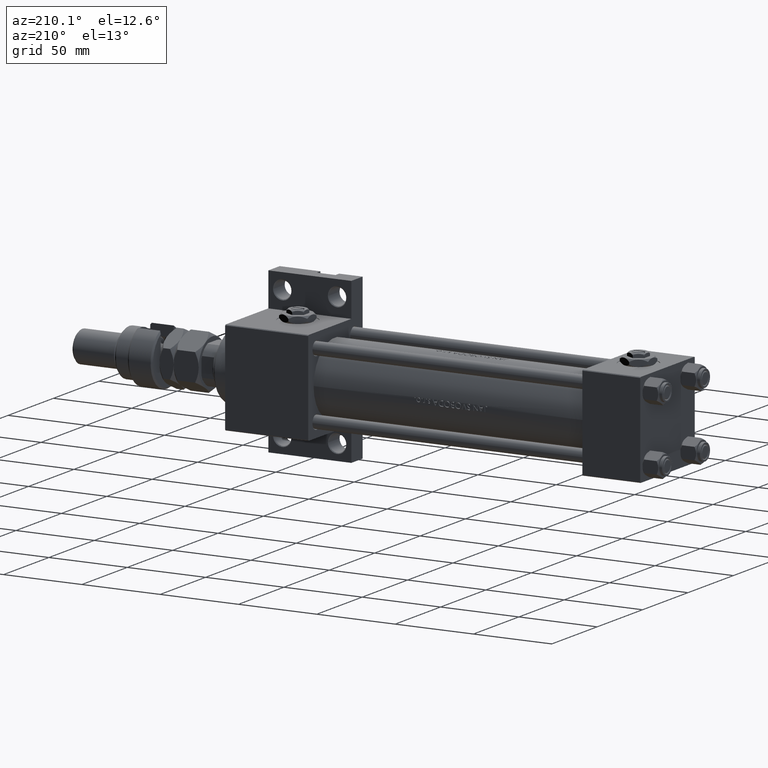
[diagram: clean part render]
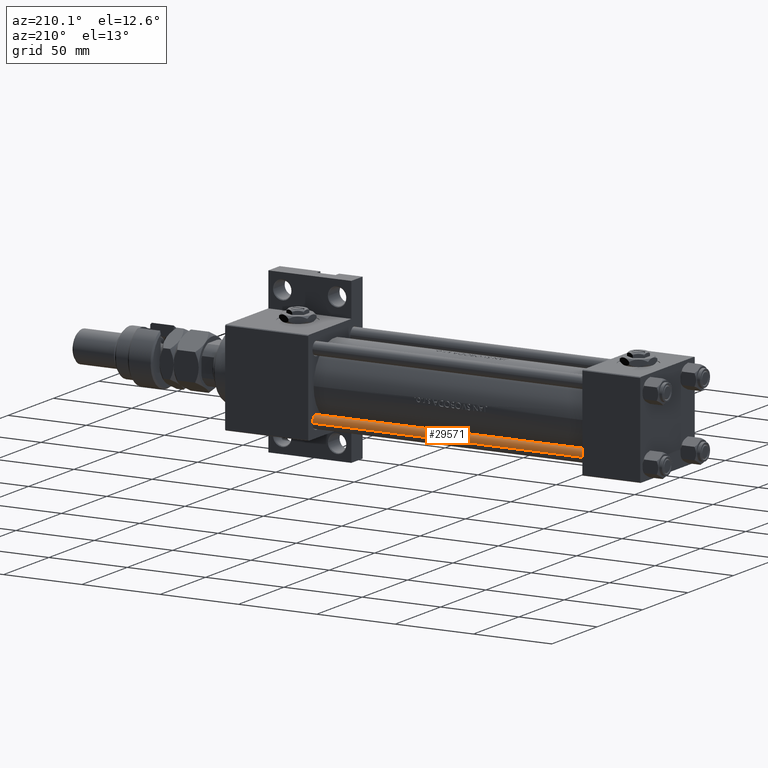
[diagram: same view with one face highlighted and labeled with its STEP entity id]
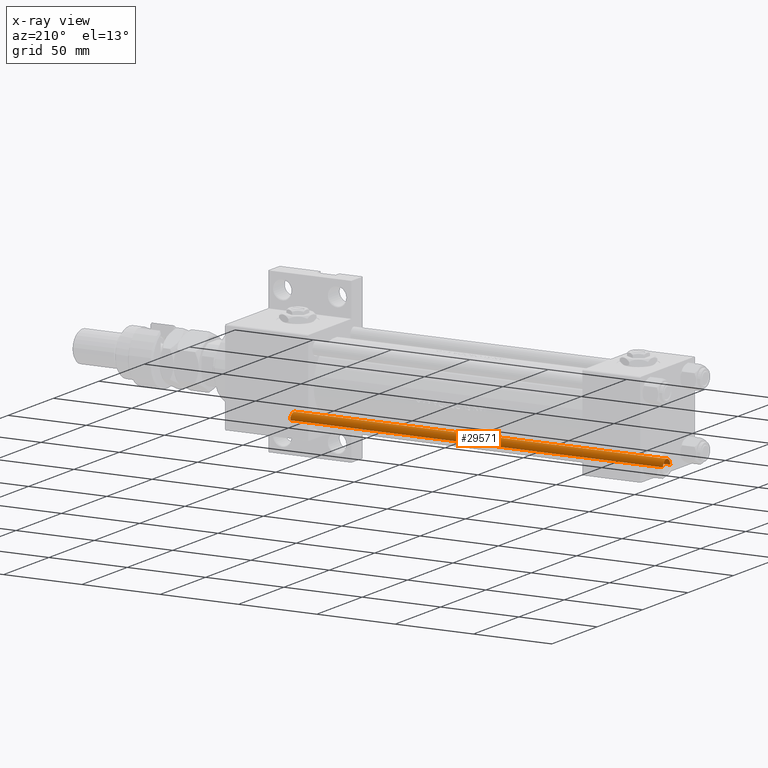
[diagram: x-ray of the same camera — body ghosted, the highlighted face saturated]
A machine part, auxiliary view. The second image highlights one B-rep face of the part: STEP entity #29571.
The next image is the same camera in x-ray: the body ghosted, the highlighted face saturated — about 0% of this face is hidden behind the body in this view.
In plain terms, the highlighted cylindrical surface (edge-blend (fillet) strip) has radius 4 mm, axis along (-1, -0, 0).
Its self-contained STEP definition (entity closure, byte-faithful):
#819 = VERTEX_POINT ( 'NONE', #23738 ) ;
#1197 = VERTEX_POINT ( 'NONE', #22528 ) ;
#2698 = AXIS2_PLACEMENT_3D ( 'NONE', #12278, #33096, #12527 ) ;
#2899 = AXIS2_PLACEMENT_3D ( 'NONE', #32208, #19484, #52560 ) ;
#4260 = EDGE_CURVE ( 'NONE', #29365, #819, #41969, .T. ) ;
#6797 = CARTESIAN_POINT ( 'NONE',  ( 4.000000000000000000, 4.898587196589411843E-16, 239.0000000000000000 ) ) ;
#7599 = LINE ( 'NONE', #6797, #41631 ) ;
#7752 = CARTESIAN_POINT ( 'NONE',  ( 4.000000000000000000, 4.898587196589411843E-16, 238.5000000000001421 ) ) ;
#8434 = ORIENTED_EDGE ( 'NONE', *, *, #4260, .F. ) ;
#9190 = EDGE_CURVE ( 'NONE', #1197, #819, #37521, .T. ) ;
#12278 = CARTESIAN_POINT ( 'NONE',  ( 0.000000000000000000, 0.000000000000000000, 238.5000000000001421 ) ) ;
#12527 = DIRECTION ( 'NONE',  ( 1.000000000000000000, 0.000000000000000000, 0.000000000000000000 ) ) ;
#13063 = CIRCLE ( 'NONE', #2698, 4.000000000000000000 ) ;
#13519 = DIRECTION ( 'NONE',  ( -0.000000000000000000, -0.000000000000000000, -1.000000000000000000 ) ) ;
#14948 = CARTESIAN_POINT ( 'NONE',  ( -4.000000000000000000, 0.000000000000000000, 238.5000000000001421 ) ) ;
#16239 = ORIENTED_EDGE ( 'NONE', *, *, #28493, .T. ) ;
#16293 = CARTESIAN_POINT ( 'NONE',  ( 0.000000000000000000, 0.000000000000000000, 239.0000000000000000 ) ) ;
#16309 = EDGE_LOOP ( 'NONE', ( #29559, #16239, #26941, #8434 ) ) ;
#19484 = DIRECTION ( 'NONE',  ( -0.000000000000000000, -0.000000000000000000, 1.000000000000000000 ) ) ;
#21381 = CARTESIAN_POINT ( 'NONE',  ( -4.000000000000000000, 0.000000000000000000, 239.0000000000000000 ) ) ;
#22528 = CARTESIAN_POINT ( 'NONE',  ( 4.000000000000000000, 4.898587196589411843E-16, 0.5000000000001392220 ) ) ;
#23738 = CARTESIAN_POINT ( 'NONE',  ( -4.000000000000000000, 0.000000000000000000, 0.5000000000001392220 ) ) ;
#26941 = ORIENTED_EDGE ( 'NONE', *, *, #9190, .T. ) ;
#27533 = EDGE_CURVE ( 'NONE', #29365, #45617, #13063, .T. ) ;
#28493 = EDGE_CURVE ( 'NONE', #45617, #1197, #7599, .T. ) ;
#29365 = VERTEX_POINT ( 'NONE', #14948 ) ;
#29559 = ORIENTED_EDGE ( 'NONE', *, *, #27533, .T. ) ;
#29571 = ADVANCED_FACE ( 'NONE', ( #48809 ), #40935, .T. ) ;
#32208 = CARTESIAN_POINT ( 'NONE',  ( 0.000000000000000000, 0.000000000000000000, 0.5000000000001392220 ) ) ;
#33096 = DIRECTION ( 'NONE',  ( 0.000000000000000000, 0.000000000000000000, -1.000000000000000000 ) ) ;
#37521 = CIRCLE ( 'NONE', #2899, 4.000000000000000000 ) ;
#37888 = VECTOR ( 'NONE', #13519, 1000.000000000000000 ) ;
#40935 = CYLINDRICAL_SURFACE ( 'NONE', #52105, 4.000000000000000000 ) ;
#41631 = VECTOR ( 'NONE', #49339, 1000.000000000000000 ) ;
#41969 = LINE ( 'NONE', #21381, #37888 ) ;
#43062 = DIRECTION ( 'NONE',  ( -1.000000000000000000, 0.000000000000000000, 0.000000000000000000 ) ) ;
#45617 = VERTEX_POINT ( 'NONE', #7752 ) ;
#48809 = FACE_OUTER_BOUND ( 'NONE', #16309, .T. ) ;
#49339 = DIRECTION ( 'NONE',  ( -0.000000000000000000, -0.000000000000000000, -1.000000000000000000 ) ) ;
#52105 = AXIS2_PLACEMENT_3D ( 'NONE', #16293, #52342, #43062 ) ;
#52342 = DIRECTION ( 'NONE',  ( -0.000000000000000000, -0.000000000000000000, -1.000000000000000000 ) ) ;
#52560 = DIRECTION ( 'NONE',  ( 1.000000000000000000, 0.000000000000000000, 0.000000000000000000 ) ) ;